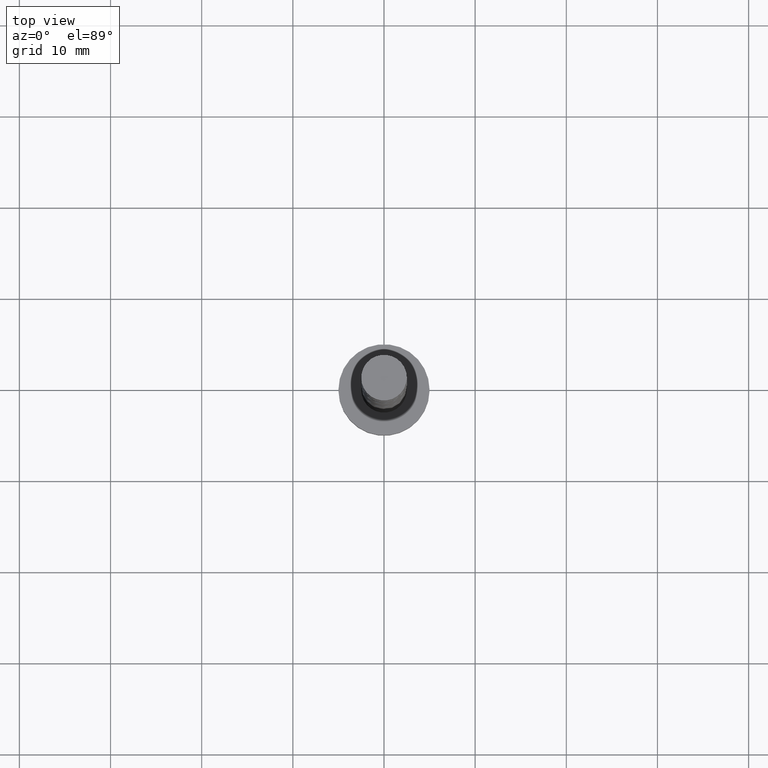
[diagram: clean part render]
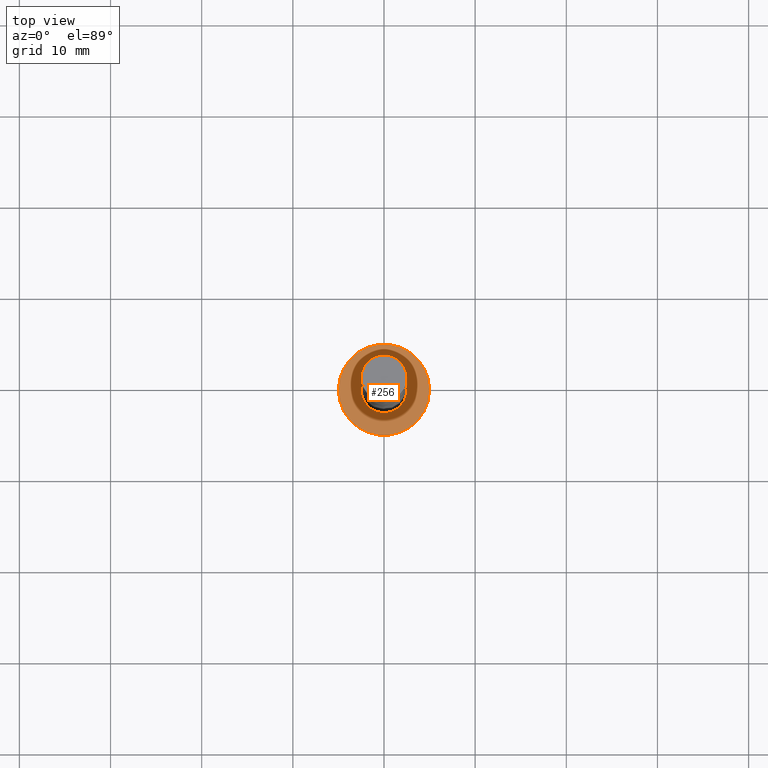
[diagram: same view with one face highlighted and labeled with its STEP entity id]
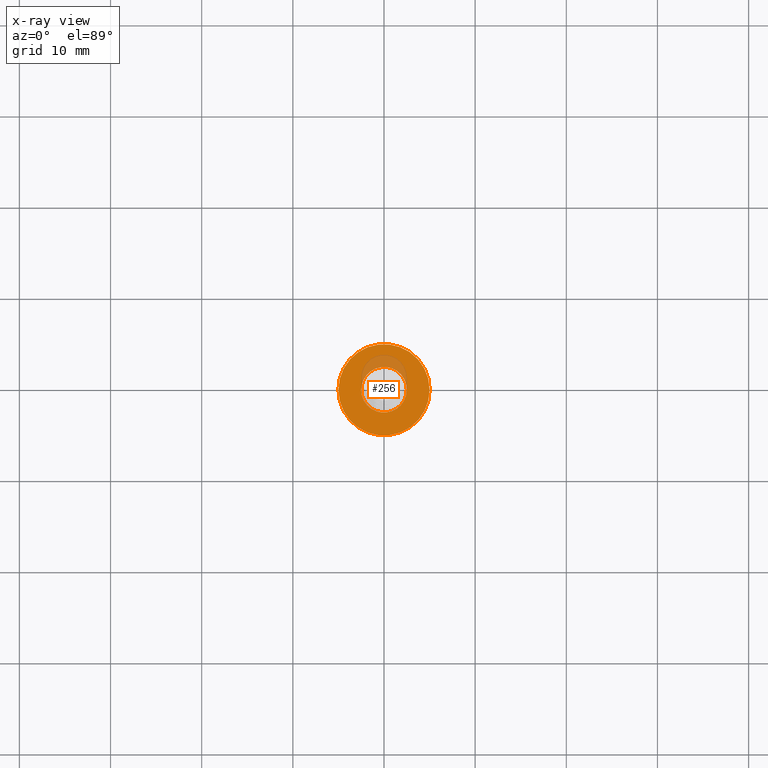
[diagram: x-ray of the same camera — body ghosted, the highlighted face saturated]
A machine part, top view. The second image highlights one B-rep face of the part: STEP entity #256.
The next image is the same camera in x-ray: the body ghosted, the highlighted face saturated — about 11% of this face is hidden behind the body in this view.
In plain terms, the highlighted planar face has unit normal (0, 0, 1).
Its self-contained STEP definition (entity closure, byte-faithful):
#13 = CIRCLE ( 'NONE', #575, 2.500000000000000000 ) ;
#20 = CARTESIAN_POINT ( 'NONE',  ( 0.000000000000000000, 0.000000000000000000, 3.000000000000000000 ) ) ;
#25 = DIRECTION ( 'NONE',  ( 0.000000000000000000, 0.000000000000000000, 1.000000000000000000 ) ) ;
#42 = FACE_BOUND ( 'NONE', #663, .T. ) ;
#69 = DIRECTION ( 'NONE',  ( 0.000000000000000000, 0.000000000000000000, 1.000000000000000000 ) ) ;
#152 = PLANE ( 'NONE',  #953 ) ;
#158 = CARTESIAN_POINT ( 'NONE',  ( 0.000000000000000000, 0.000000000000000000, 3.000000000000000000 ) ) ;
#256 = ADVANCED_FACE ( 'NONE', ( #42, #380 ), #152, .T. ) ;
#323 = DIRECTION ( 'NONE',  ( 0.000000000000000000, 0.000000000000000000, 1.000000000000000000 ) ) ;
#328 = EDGE_CURVE ( 'NONE', #1016, #560, #13, .T. ) ;
#331 = DIRECTION ( 'NONE',  ( 1.000000000000000000, 0.000000000000000000, 0.000000000000000000 ) ) ;
#380 = FACE_OUTER_BOUND ( 'NONE', #1557, .T. ) ;
#457 = EDGE_CURVE ( 'NONE', #810, #602, #1079, .T. ) ;
#492 = DIRECTION ( 'NONE',  ( 1.000000000000000000, 0.000000000000000000, 0.000000000000000000 ) ) ;
#509 = DIRECTION ( 'NONE',  ( 0.000000000000000000, 0.000000000000000000, 1.000000000000000000 ) ) ;
#549 = AXIS2_PLACEMENT_3D ( 'NONE', #158, #25, #642 ) ;
#560 = VERTEX_POINT ( 'NONE', #619 ) ;
#564 = DIRECTION ( 'NONE',  ( 1.000000000000000000, 0.000000000000000000, 0.000000000000000000 ) ) ;
#575 = AXIS2_PLACEMENT_3D ( 'NONE', #1275, #69, #564 ) ;
#577 = CIRCLE ( 'NONE', #549, 2.500000000000000000 ) ;
#602 = VERTEX_POINT ( 'NONE', #1068 ) ;
#619 = CARTESIAN_POINT ( 'NONE',  ( 2.500000000000000000, 3.061616997868383141E-16, 3.000000000000000000 ) ) ;
#623 = EDGE_CURVE ( 'NONE', #602, #810, #1228, .T. ) ;
#637 = DIRECTION ( 'NONE',  ( 1.000000000000000000, 0.000000000000000000, -0.000000000000000000 ) ) ;
#642 = DIRECTION ( 'NONE',  ( 1.000000000000000000, 0.000000000000000000, 0.000000000000000000 ) ) ;
#663 = EDGE_LOOP ( 'NONE', ( #931, #1160 ) ) ;
#685 = ORIENTED_EDGE ( 'NONE', *, *, #623, .T. ) ;
#719 = CARTESIAN_POINT ( 'NONE',  ( 0.000000000000000000, 0.000000000000000000, 3.000000000000000000 ) ) ;
#755 = CARTESIAN_POINT ( 'NONE',  ( -5.000000000000000000, 0.000000000000000000, 3.000000000000000000 ) ) ;
#810 = VERTEX_POINT ( 'NONE', #755 ) ;
#890 = EDGE_CURVE ( 'NONE', #560, #1016, #577, .T. ) ;
#903 = AXIS2_PLACEMENT_3D ( 'NONE', #719, #1326, #492 ) ;
#931 = ORIENTED_EDGE ( 'NONE', *, *, #328, .F. ) ;
#953 = AXIS2_PLACEMENT_3D ( 'NONE', #20, #509, #637 ) ;
#1000 = AXIS2_PLACEMENT_3D ( 'NONE', #1148, #323, #331 ) ;
#1016 = VERTEX_POINT ( 'NONE', #1391 ) ;
#1055 = ORIENTED_EDGE ( 'NONE', *, *, #457, .T. ) ;
#1068 = CARTESIAN_POINT ( 'NONE',  ( 5.000000000000000000, 6.123233995736766282E-16, 3.000000000000000000 ) ) ;
#1079 = CIRCLE ( 'NONE', #1000, 5.000000000000000000 ) ;
#1148 = CARTESIAN_POINT ( 'NONE',  ( 0.000000000000000000, 0.000000000000000000, 3.000000000000000000 ) ) ;
#1160 = ORIENTED_EDGE ( 'NONE', *, *, #890, .F. ) ;
#1228 = CIRCLE ( 'NONE', #903, 5.000000000000000000 ) ;
#1275 = CARTESIAN_POINT ( 'NONE',  ( 0.000000000000000000, 0.000000000000000000, 3.000000000000000000 ) ) ;
#1326 = DIRECTION ( 'NONE',  ( 0.000000000000000000, 0.000000000000000000, 1.000000000000000000 ) ) ;
#1391 = CARTESIAN_POINT ( 'NONE',  ( -2.500000000000000000, 0.000000000000000000, 3.000000000000000000 ) ) ;
#1557 = EDGE_LOOP ( 'NONE', ( #1055, #685 ) ) ;